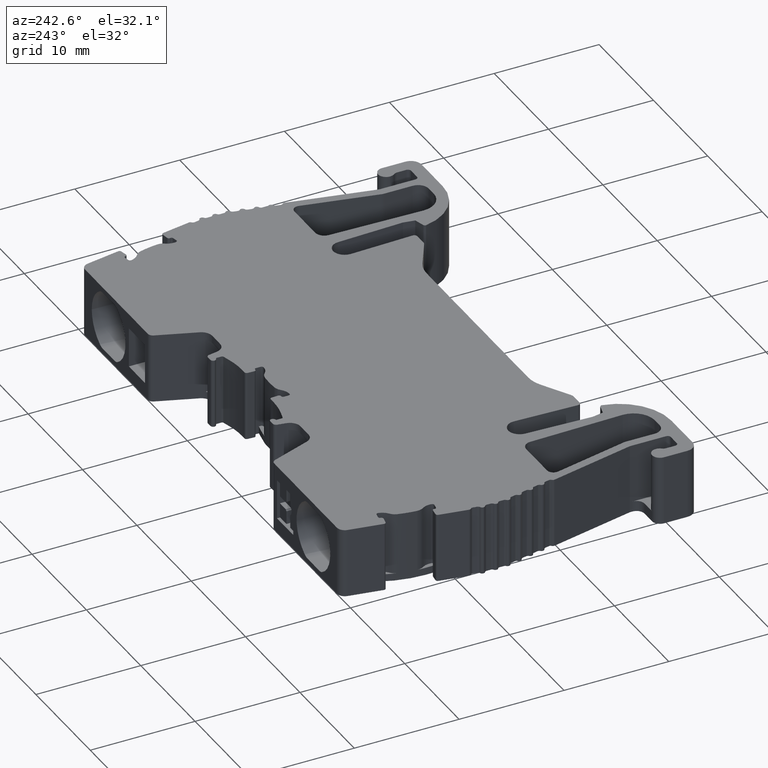
[diagram: clean part render]
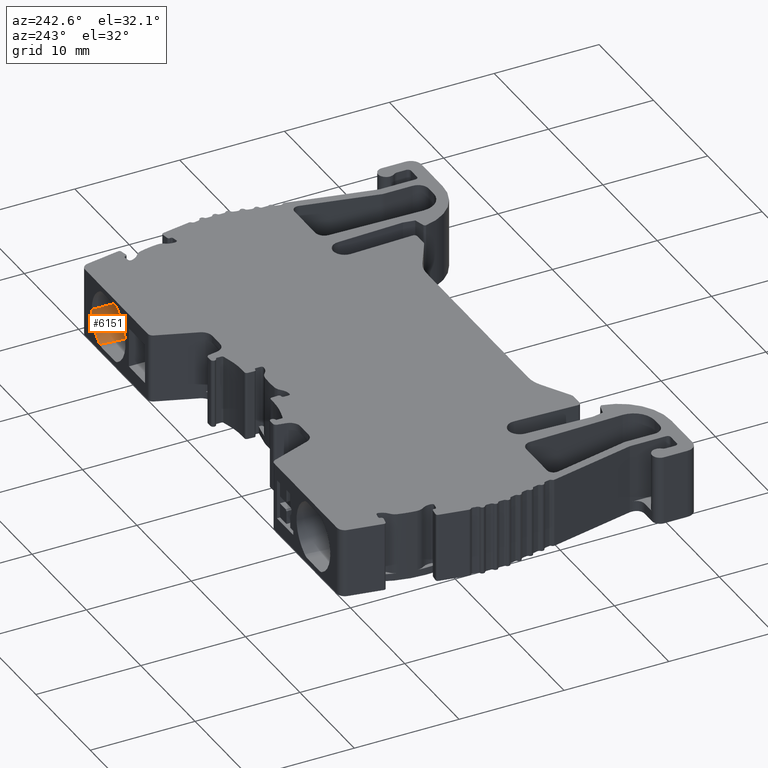
[diagram: same view with one face highlighted and labeled with its STEP entity id]
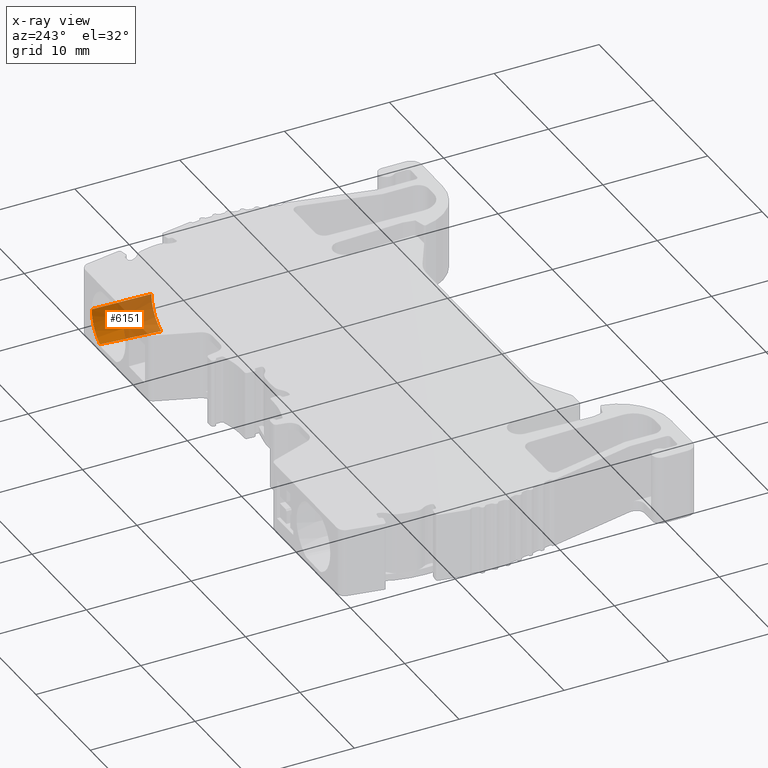
[diagram: x-ray of the same camera — body ghosted, the highlighted face saturated]
A machine part, auxiliary view. The second image highlights one B-rep face of the part: STEP entity #6151.
The next image is the same camera in x-ray: the body ghosted, the highlighted face saturated — about 56% of this face is hidden behind the body in this view.
In plain terms, the highlighted conical surface has half-angle 1.5 deg.
Its self-contained STEP definition (entity closure, byte-faithful):
#350 = VECTOR ( 'NONE', #949, 1000.000000000000000 ) ;
#359 = AXIS2_PLACEMENT_3D ( 'NONE', #860, #877, #878 ) ;
#376 = CIRCLE ( 'NONE', #359, 3.101458967779340300 ) ;
#412 = CIRCLE ( 'NONE', #480, 2.954528313474357000 ) ;
#480 = AXIS2_PLACEMENT_3D ( 'NONE', #1202, #1187, #1168 ) ;
#668 = CONICAL_SURFACE ( 'NONE', #681, 3.114551928564024400, 0.02617993877999831900 ) ;
#681 = AXIS2_PLACEMENT_3D ( 'NONE', #2342, #2345, #2358 ) ;
#854 = CARTESIAN_POINT ( 'NONE',  ( 1954.540928848888400, 516.9240406793917400, -2.697434001107918500 ) ) ;
#860 = CARTESIAN_POINT ( 'NONE',  ( 1953.208674065075200, 520.6674757026430600, 6.682518055096240200E-015 ) ) ;
#862 = CARTESIAN_POINT ( 'NONE',  ( 1954.809955638310200, 520.6674757026430600, -2.656114653405434700 ) ) ;
#864 = CARTESIAN_POINT ( 'NONE',  ( 1954.681885767559800, 518.7954073227242600, -2.676082432992213300 ) ) ;
#866 = CARTESIAN_POINT ( 'NONE',  ( 1954.361205023422100, 515.0564203912498400, -2.720461347854941500 ) ) ;
#877 = DIRECTION ( 'NONE',  ( 0.0000000000000000000, 1.000000000000000000, 0.0000000000000000000 ) ) ;
#878 = DIRECTION ( 'NONE',  ( 0.0000000000000000000, 0.0000000000000000000, -1.000000000000000000 ) ) ;
#897 = CARTESIAN_POINT ( 'NONE',  ( 1956.323225993639200, 521.1674757026451100, 0.0000000000000000000 ) ) ;
#899 = LINE ( 'NONE', #897, #350 ) ;
#949 = DIRECTION ( 'NONE',  ( 0.02617694830797245900, 0.9996573249755547100, 0.0000000000000000000 ) ) ;
#1168 = DIRECTION ( 'NONE',  ( -7.515399460292174600E-014, 0.0000000000000000000, 1.000000000000000000 ) ) ;
#1187 = DIRECTION ( 'NONE',  ( -0.0000000000000000000, -1.000000000000000000, -0.0000000000000000000 ) ) ;
#1202 = CARTESIAN_POINT ( 'NONE',  ( 1953.208674065075200, 515.0564203912498400, -9.627897018295392500E-014 ) ) ;
#2342 = CARTESIAN_POINT ( 'NONE',  ( 1953.208674065075200, 521.1674757026451100, 0.0000000000000000000 ) ) ;
#2345 = DIRECTION ( 'NONE',  ( 1.595690164275845200E-014, 1.000000000000000000, 0.0000000000000000000 ) ) ;
#2357 = FACE_OUTER_BOUND ( 'NONE', #4491, .T. ) ;
#2358 = DIRECTION ( 'NONE',  ( 1.000000000000000000, 0.0000000000000000000, 0.0000000000000000000 ) ) ;
#4491 = EDGE_LOOP ( 'NONE', ( #9871, #9866, #9891, #9920 ) ) ;
#6151 = ADVANCED_FACE ( 'NONE', ( #2357 ), #668, .F. ) ;
#6696 = EDGE_CURVE ( 'NONE', #10766, #10769, #9779, .T. ) ;
#6697 = EDGE_CURVE ( 'NONE', #10809, #10766, #376, .T. ) ;
#6712 = EDGE_CURVE ( 'NONE', #10783, #10809, #899, .T. ) ;
#6776 = EDGE_CURVE ( 'NONE', #10769, #10783, #412, .T. ) ;
#8042 = CARTESIAN_POINT ( 'NONE',  ( 1954.361205023422100, 515.0564203912498400, -2.720461347854941500 ) ) ;
#8056 = CARTESIAN_POINT ( 'NONE',  ( 1954.809955638310200, 520.6674757026430600, -2.656114653405434700 ) ) ;
#8066 = CARTESIAN_POINT ( 'NONE',  ( 1956.163202378549600, 515.0564203912498400, -2.218671295934095700E-027 ) ) ;
#8081 = CARTESIAN_POINT ( 'NONE',  ( 1956.310133032854500, 520.6674757026430600, 0.0000000000000000000 ) ) ;
#9779 = B_SPLINE_CURVE_WITH_KNOTS ( 'NONE', 3,
 ( #862, #864, #854, #866 ),
 .UNSPECIFIED., .F., .F.,
 ( 4, 4 ),
 ( 0.0000000000000000000, 0.005629516256754622100 ),
 .UNSPECIFIED. ) ;
#9866 = ORIENTED_EDGE ( 'NONE', *, *, #6712, .T. ) ;
#9871 = ORIENTED_EDGE ( 'NONE', *, *, #6776, .T. ) ;
#9891 = ORIENTED_EDGE ( 'NONE', *, *, #6697, .T. ) ;
#9920 = ORIENTED_EDGE ( 'NONE', *, *, #6696, .T. ) ;
#10766 = VERTEX_POINT ( 'NONE', #8056 ) ;
#10769 = VERTEX_POINT ( 'NONE', #8042 ) ;
#10783 = VERTEX_POINT ( 'NONE', #8066 ) ;
#10809 = VERTEX_POINT ( 'NONE', #8081 ) ;